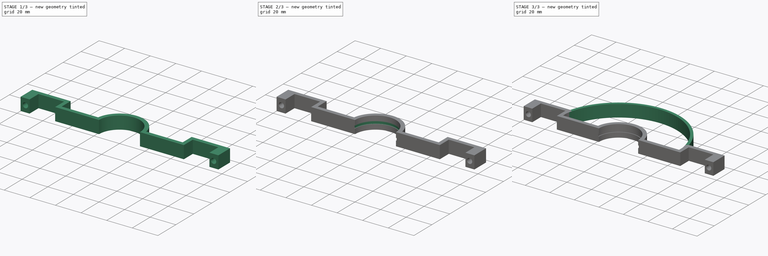
[diagram: build sequence overview — one tinted view per stage of 3, left to right]
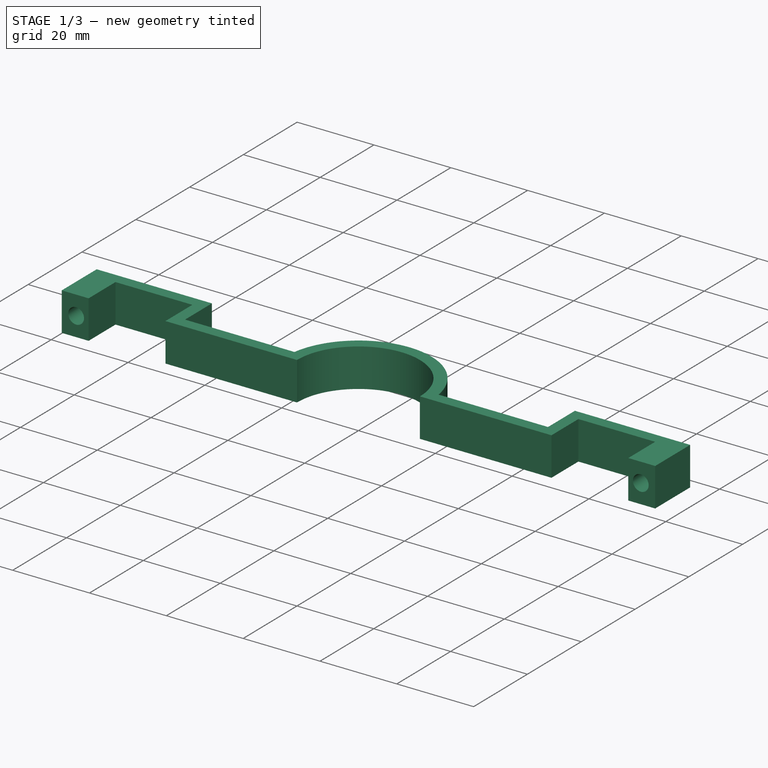
[diagram: stage 1 of 3 — iso view after this stage's code; geometry added in this stage tinted green]
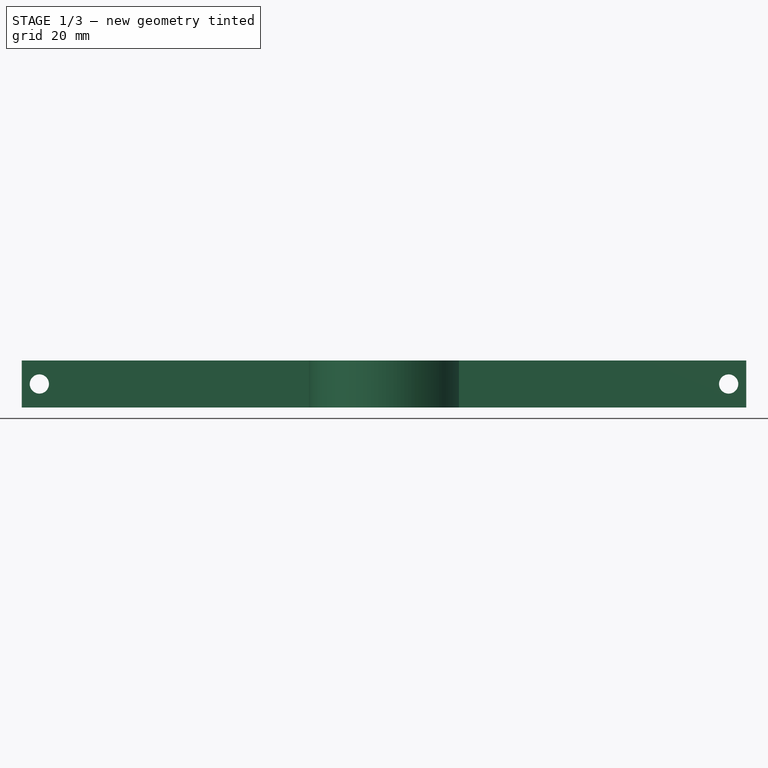
[diagram: stage 1 of 3 — front view after this stage's code; geometry added in this stage tinted green]
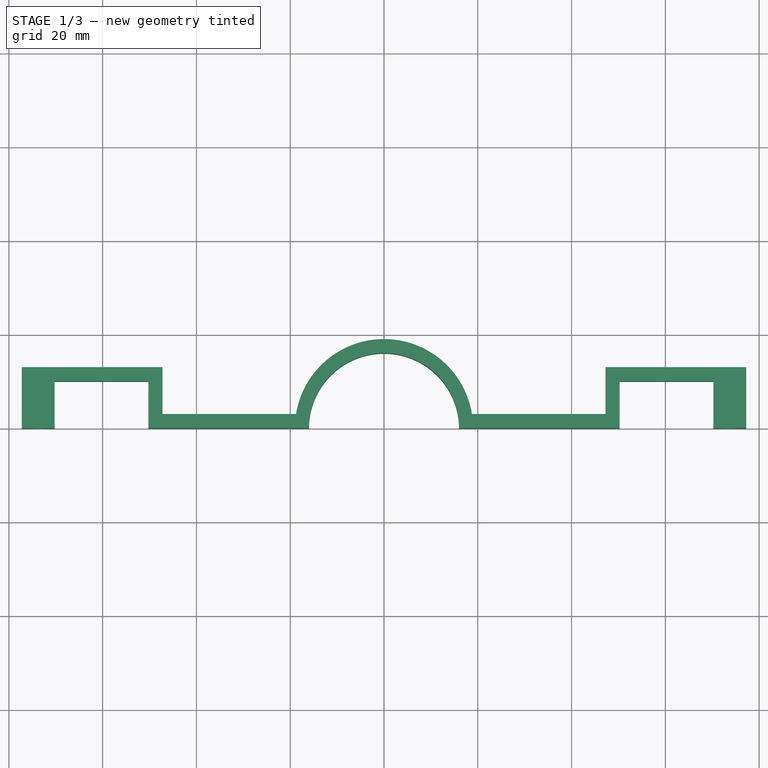
[diagram: stage 1 of 3 — top view after this stage's code; geometry added in this stage tinted green]
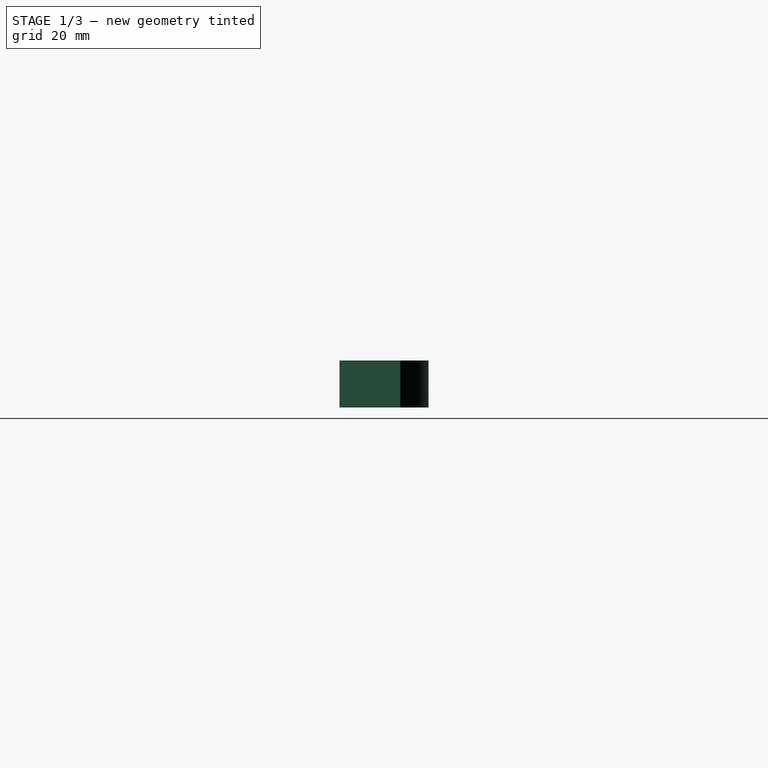
[diagram: stage 1 of 3 — right view after this stage's code; geometry added in this stage tinted green]
FCSTD DOCUMENT  (FreeCAD 0.20R29410 (Git))
Label: PadFlesHouder
License: All rights reserved
LicenseURL: http://en.wikipedia.org/wiki/All_rights_reserved
objects: Sketcher::SketchObject×5, PartDesign::Pad×2, PartDesign::Hole×2, PartDesign::Body×2, PartDesign::Pocket×1
note: 17 computed .brp shape members not serialized (recipe doc carries the construction recipe); baked Part::Feature solids carry a one-line shape summary decoded from their .brp

FEATURE [Sketcher::SketchObject] Sketch
  FullyConstrained = true
  sketch-geometry (20):
    g0: ArcOfCircle CenterX=0 CenterY=0 CenterZ=0 NormalX=0 NormalY=0 NormalZ=1 AngleXU=0 Radius=16 StartAngle=0 EndAngle=3.14159
    g1: LineSegment StartX=16 StartY=0 StartZ=0 EndX=50.25 EndY=0 EndZ=0
    g2: LineSegment StartX=50.25 StartY=0 StartZ=0 EndX=50.25 EndY=10 EndZ=0
    g3: LineSegment StartX=50.25 StartY=10 StartZ=0 EndX=70.25 EndY=10 EndZ=0
    g4: LineSegment StartX=70.25 StartY=10 StartZ=0 EndX=70.25 EndY=0 EndZ=0
    g5: LineSegment StartX=70.25 StartY=0 StartZ=0 EndX=77.25 EndY=0 EndZ=0
    g6: LineSegment StartX=77.25 StartY=0 StartZ=0 EndX=77.25 EndY=13 EndZ=0
    g7: LineSegment StartX=47.25 StartY=13 StartZ=0 EndX=47.25 EndY=3 EndZ=0
    g8: LineSegment StartX=47.25 StartY=3 StartZ=0 EndX=18.7617 EndY=3 EndZ=0
    g9: LineSegment StartX=77.25 StartY=13 StartZ=0 EndX=47.25 EndY=13 EndZ=0
    g10: ArcOfCircle CenterX=0 CenterY=0 CenterZ=0 NormalX=0 NormalY=0 NormalZ=1 AngleXU=0 Radius=19 StartAngle=0.158558 EndAngle=2.98303
    g11: LineSegment StartX=-16 StartY=2e-15 StartZ=0 EndX=-50.25 EndY=0 EndZ=0
    g12: LineSegment StartX=-50.25 StartY=0 StartZ=0 EndX=-50.25 EndY=10 EndZ=0
    g13: LineSegment StartX=-50.25 StartY=10 StartZ=0 EndX=-70.25 EndY=10 EndZ=0
    g14: LineSegment StartX=-70.25 StartY=10 StartZ=0 EndX=-70.25 EndY=0 EndZ=0
    g15: LineSegment StartX=-70.25 StartY=0 StartZ=0 EndX=-77.25 EndY=0 EndZ=0
    g16: LineSegment StartX=-77.25 StartY=0 StartZ=0 EndX=-77.25 EndY=13 EndZ=0
    g17: LineSegment StartX=-77.25 StartY=13 StartZ=0 EndX=-47.25 EndY=13 EndZ=0
    g18: LineSegment StartX=-47.25 StartY=13 StartZ=0 EndX=-47.25 EndY=3 EndZ=0
    g19: LineSegment StartX=-47.25 StartY=3 StartZ=0 EndX=-18.7617 EndY=3 EndZ=0
  constraints (60):
    c: Coincident(g0,g-1)
    c: PointOnObject(g0,g-1)
    c: PointOnObject(g0,g-1)
    c: Radius(g0) = 16
    c: Coincident(g1,g0)
    c: PointOnObject(g1,g-1)
    c: DistanceX(g1,g1) = 34.25
    c: Coincident(g1,g2)
    c: Vertical(g2)
    c: Coincident(g2,g3)
    c: Horizontal(g3)
    c: Coincident(g3,g4)
    c: PointOnObject(g4,g-1)
    c: Vertical(g4)
    c: Coincident(g4,g5)
    c: PointOnObject(g5,g-1)
    c: Coincident(g5,g6)
    c: Vertical(g6)
    c: Vertical(g7)
    c: Coincident(g7,g8)
    c: Horizontal(g8)
    c: DistanceY(g2,g2) = 10
    c: DistanceX(g3,g3) = 20
    c: DistanceX(g5,g5) = 7
    c: DistanceY(g6,g6) = 13
    c: Coincident(g9,g6)
    c: Coincident(g9,g7)
    c: Horizontal(g9)
    c: DistanceX(g9,g9) = 30
    c: DistanceY(g7,g7) = 10
    c: Coincident(g10,g0)
    c: Radius(g10) = 19
    c: Coincident(g10,g8)
    c: Coincident(g11,g0)
    c: PointOnObject(g11,g-1)
    c: DistanceX(g11,g11) = 34.25
    c: Coincident(g11,g12)
    c: Vertical(g12)
    c: Coincident(g12,g13)
    c: Horizontal(g13)
    c: Coincident(g13,g14)
    c: PointOnObject(g14,g-1)
    c: Vertical(g14)
    c: Coincident(g14,g15)
    c: PointOnObject(g15,g-1)
    c: Coincident(g15,g16)
    c: Vertical(g16)
    c: Coincident(g16,g17)
    c: Horizontal(g17)
    c: Coincident(g17,g18)
    c: Vertical(g18)
    c: Coincident(g18,g19)
    c: Horizontal(g19)
    c: DistanceY(g14,g14) = 10
    c: DistanceX(g13,g13) = 20
    c: DistanceX(g15,g15) = 7
    c: DistanceY(g16,g16) = 13
    c: DistanceX(g17,g17) = 30
    c: DistanceY(g18,g18) = 10
    c: Coincident(g19,g10)
FEATURE [PartDesign::Pad] Pad
  Direction = (0,0,1)
  Length = 10
  Length2 = 10
  Profile = -> Sketch
  ReferenceAxis = -> Sketch [N_Axis]
  Type = 0
FEATURE [Sketcher::SketchObject] Sketch004
  FullyConstrained = true
  MapMode = 5
  Placement = pos=(0,0,0) rot=(1,0,0;1.5708rad)
  Support = -> [XZ_Plane002]
  sketch-geometry (6):
    g0: Circle CenterX=-73.5 CenterY=5 CenterZ=0 NormalX=0 NormalY=0 NormalZ=1 AngleXU=0 Radius=1.75
    g1: Circle CenterX=73.5 CenterY=5 CenterZ=0 NormalX=0 NormalY=0 NormalZ=1 AngleXU=0 Radius=1.75
    g2: LineSegment StartX=-73.5 StartY=5 StartZ=0 EndX=0 EndY=5 EndZ=0
    g3: LineSegment StartX=-73.5 StartY=5 StartZ=0 EndX=-73.5 EndY=0 EndZ=0
    g4: LineSegment StartX=73.5 StartY=5 StartZ=0 EndX=0 EndY=5 EndZ=0
    g5: LineSegment StartX=73.5 StartY=5 StartZ=0 EndX=73.5 EndY=0 EndZ=0
  constraints (18):
    c: Equal(g0,g1)
    c: Diameter(g0) = 3.5
    c: Coincident(g2,g0)
    c: PointOnObject(g2,g-2)
    c: Horizontal(g2)
    c: Coincident(g3,g0)
    c: PointOnObject(g3,g-1)
    c: Vertical(g3)
    c: Coincident(g4,g1)
    c: PointOnObject(g4,g-2)
    c: Horizontal(g4)
    c: Equal(g4,g2)
    c: Coincident(g5,g1)
    c: PointOnObject(g5,g-1)
    c: Vertical(g5)
    c: Equal(g5,g3)
    c: DistanceX(g4,g4) = 73.5
    c: DistanceY(g5,g5) = 5
FEATURE [PartDesign::Hole] Hole
  BaseFeature = -> Pad
  CustomThreadClearance = 0
  Depth = 25
  DepthType = 0
  Diameter = 4.1
  DrillForDepth = false
  DrillPoint = 1
  DrillPointAngle = 118
  HoleCutCountersinkAngle = 90
  HoleCutCustomValues = false
  HoleCutDepth = 0
  HoleCutDiameter = 4.2
  HoleCutType = 0
  ModelThread = false
  Profile = -> Sketch004
  Tapered = false
  TaperedAngle = 90
  ThreadClass = 0
  ThreadDepth = 25
  ThreadDepthType = 0
  ThreadDirection = 0
  ThreadFit = 0
  ThreadSize = 0
  ThreadType = 0
  Threaded = false
  UseCustomThreadClearance = false
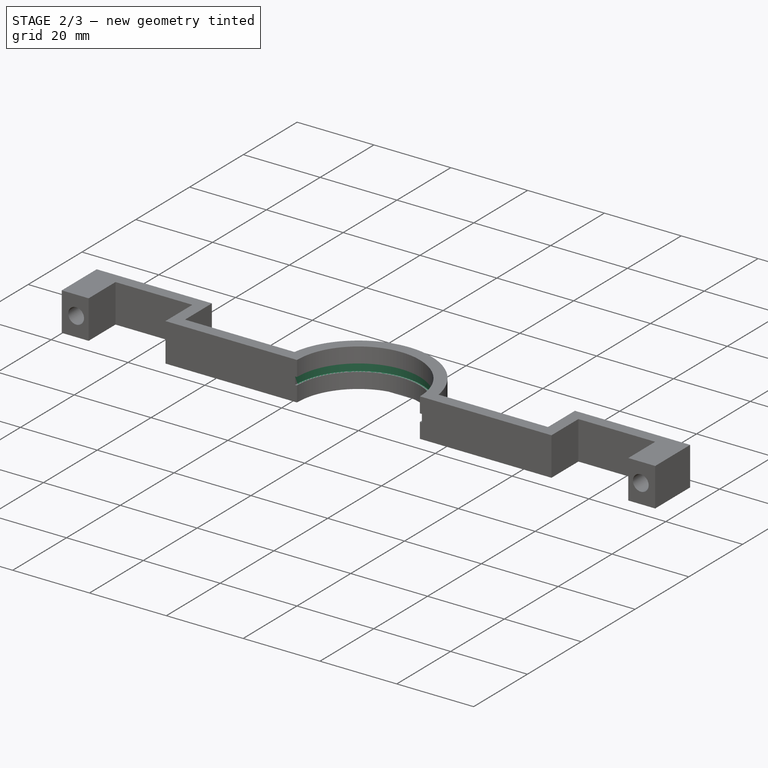
[diagram: stage 2 of 3 — iso view after this stage's code; geometry added in this stage tinted green]
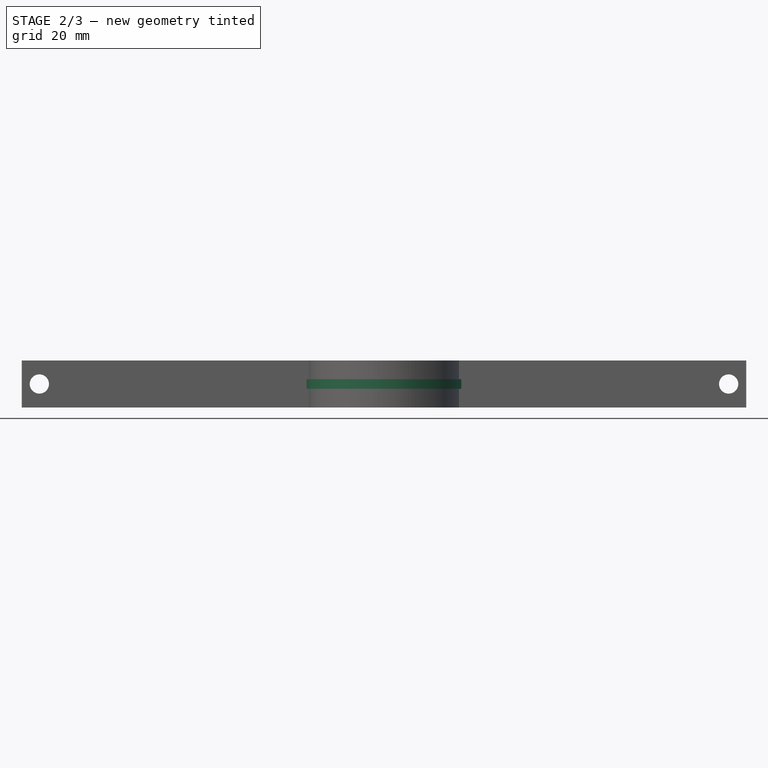
[diagram: stage 2 of 3 — front view after this stage's code; geometry added in this stage tinted green]
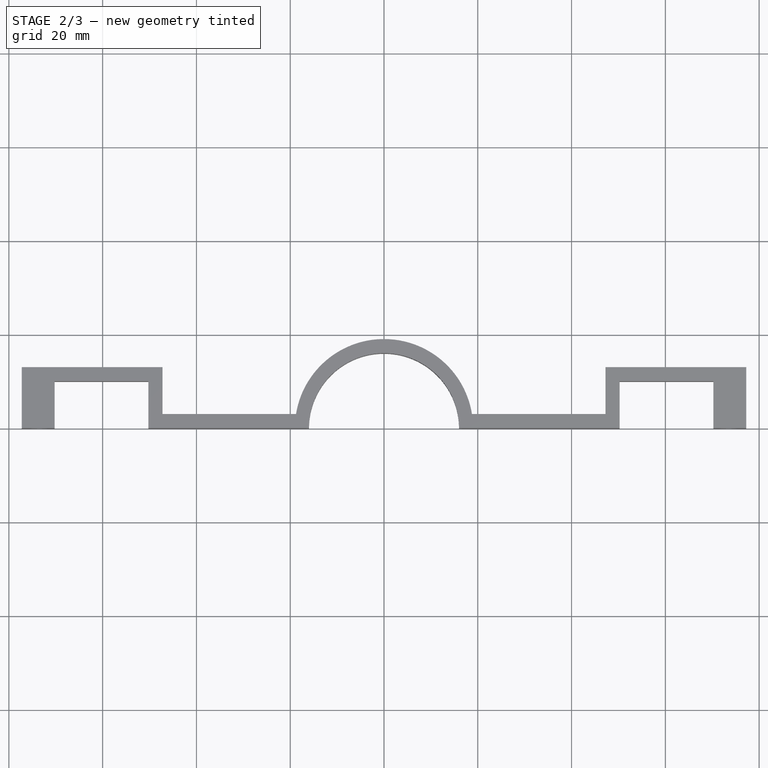
[diagram: stage 2 of 3 — top view after this stage's code; geometry added in this stage tinted green]
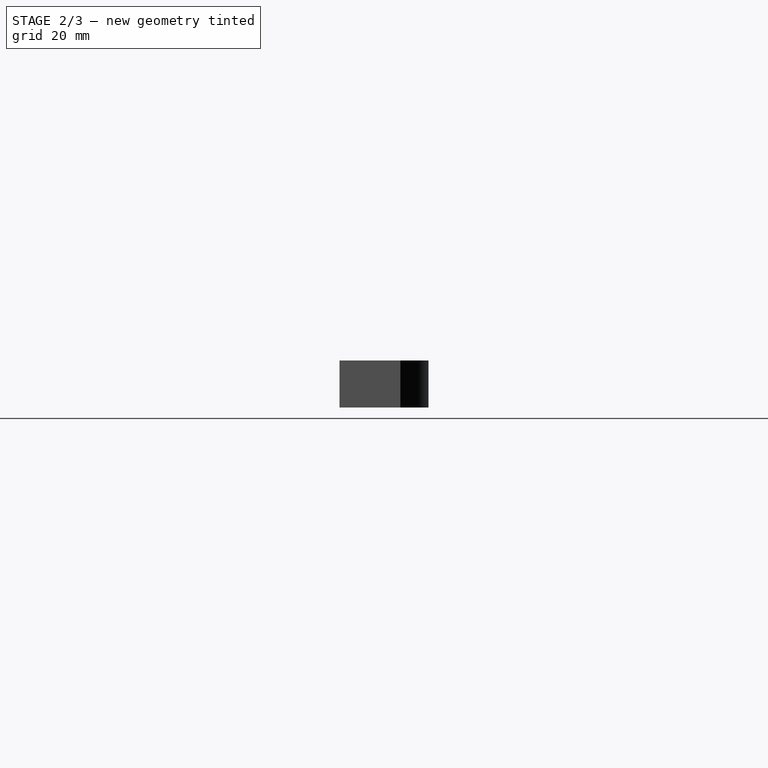
[diagram: stage 2 of 3 — right view after this stage's code; geometry added in this stage tinted green]
FEATURE [PartDesign::Body] Body002  label="PedFlesBodyHolder"
  Group = -> [Sketch003,Pad001,Sketch005,Hole001]
  Origin = -> Origin004
  Tip = -> Hole001
FEATURE [Sketcher::SketchObject] Sketch006
  AttachmentOffset = pos=(0,0,6) rot=(0,0,1;0rad)
  FullyConstrained = true
  MapMode = 5
  Placement = pos=(0,0,6) rot=(0,0,1;0rad)
  Support = -> [XY_Plane002]
  sketch-geometry (1):
    g0: Circle CenterX=0 CenterY=0 CenterZ=0 NormalX=0 NormalY=0 NormalZ=1 AngleXU=0 Radius=16.5
  constraints (2):
    c: Coincident(g0,g-1)
    c: Diameter(g0) = 33
FEATURE [PartDesign::Pocket] Pocket
  BaseFeature = -> Hole
  Direction = (0,0,-1)
  Length = 2
  Length2 = 5
  Profile = -> Sketch006
  ReferenceAxis = -> Sketch006 [N_Axis]
  Type = 0
FEATURE [PartDesign::Body] Body  label="PedFlesHalsHolder"
  Group = -> [Sketch,Pad,Sketch004,Hole,Sketch006,Pocket]
  Origin = -> Origin002
  Tip = -> Pocket
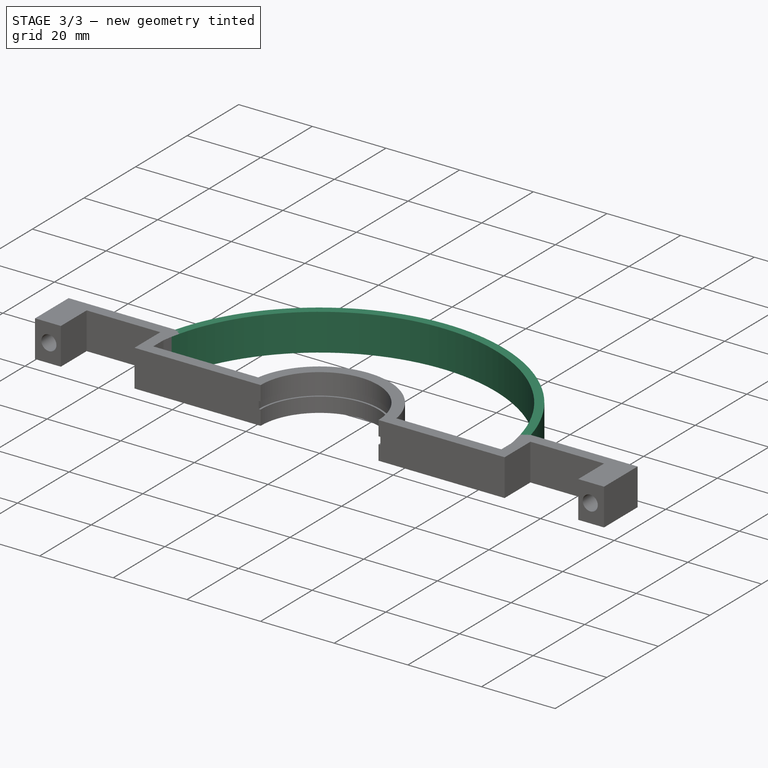
[diagram: stage 3 of 3 — iso view after this stage's code; geometry added in this stage tinted green]
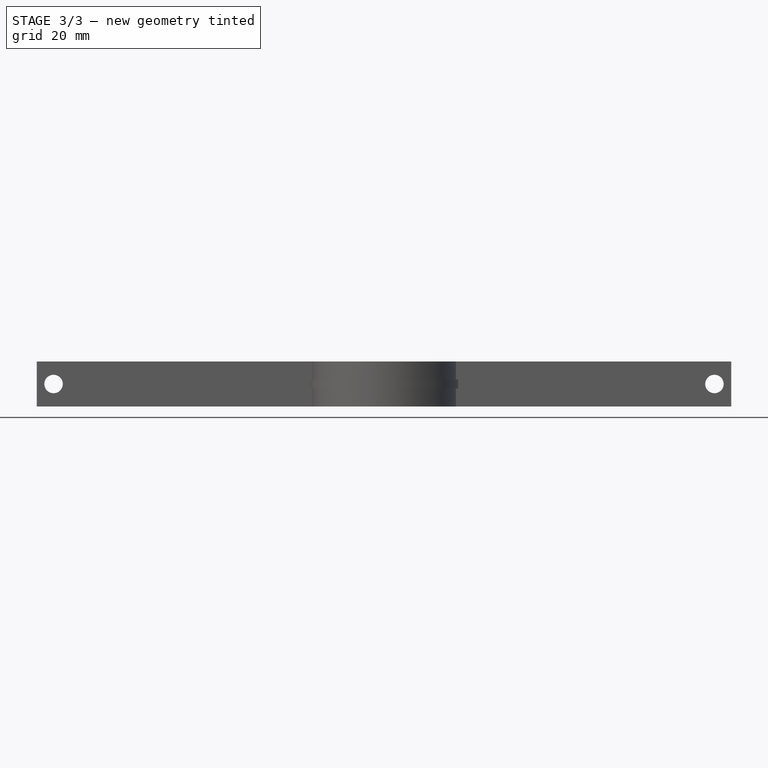
[diagram: stage 3 of 3 — front view after this stage's code; geometry added in this stage tinted green]
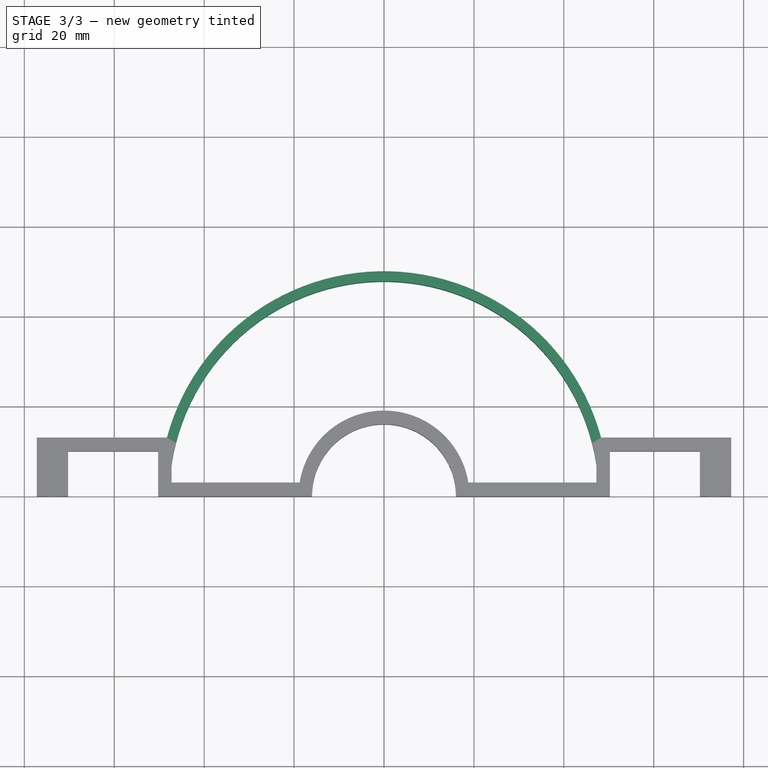
[diagram: stage 3 of 3 — top view after this stage's code; geometry added in this stage tinted green]
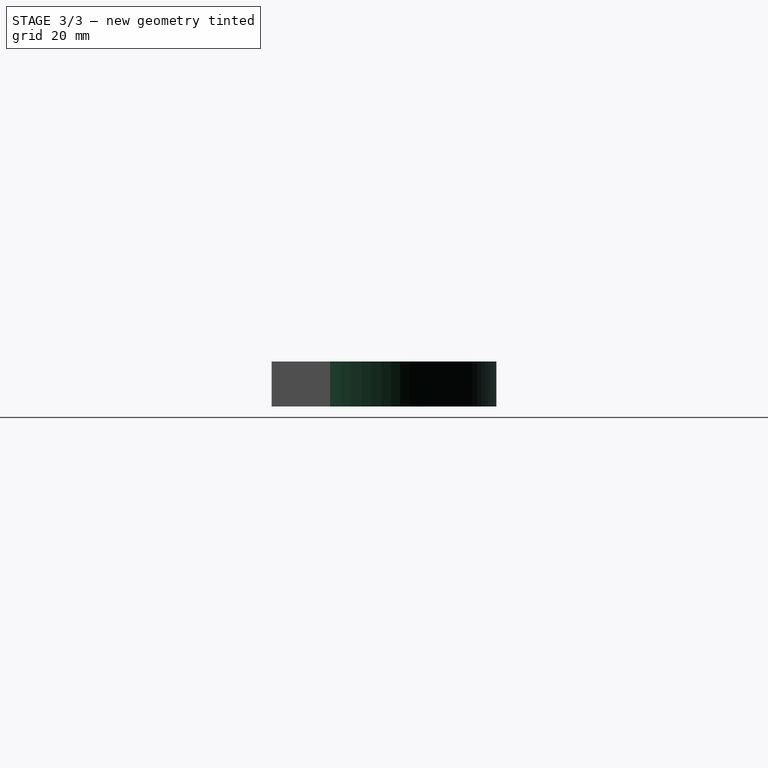
[diagram: stage 3 of 3 — right view after this stage's code; geometry added in this stage tinted green]
FEATURE [Sketcher::SketchObject] Sketch003
  FullyConstrained = true
  MapMode = 5
  Support = -> [XY_Plane004]
  sketch-geometry (16):
    g0: ArcOfCircle CenterX=0 CenterY=0 CenterZ=0 NormalX=0 NormalY=0 NormalZ=1 AngleXU=0 Radius=47.75 StartAngle=0 EndAngle=3.14159
    g1: LineSegment StartX=47.75 StartY=0 StartZ=0 EndX=50.25 EndY=0 EndZ=0
    g2: LineSegment StartX=50.25 StartY=0 StartZ=0 EndX=50.25 EndY=10 EndZ=0
    g3: LineSegment StartX=50.25 StartY=10 StartZ=0 EndX=70.25 EndY=10 EndZ=0
    g4: LineSegment StartX=70.25 StartY=10 StartZ=0 EndX=70.25 EndY=0 EndZ=0
    g5: LineSegment StartX=70.25 StartY=0 StartZ=0 EndX=77.25 EndY=0 EndZ=0
    g6: LineSegment StartX=77.25 StartY=0 StartZ=0 EndX=77.25 EndY=13 EndZ=0
    g7: LineSegment StartX=77.25 StartY=13 StartZ=0 EndX=48.2804 EndY=13 EndZ=0
    g8: ArcOfCircle CenterX=0 CenterY=0 CenterZ=0 NormalX=0 NormalY=0 NormalZ=1 AngleXU=0 Radius=50 StartAngle=0.263022 EndAngle=2.87857
    g9: LineSegment StartX=-47.75 StartY=0 StartZ=0 EndX=-50.25 EndY=0 EndZ=0
    g10: LineSegment StartX=-50.25 StartY=0 StartZ=0 EndX=-50.25 EndY=10 EndZ=0
    g11: LineSegment StartX=-50.25 StartY=10 StartZ=0 EndX=-70.25 EndY=10 EndZ=0
    g12: LineSegment StartX=-70.25 StartY=10 StartZ=0 EndX=-70.25 EndY=0 EndZ=0
    g13: LineSegment StartX=-70.25 StartY=0 StartZ=0 EndX=-77.25 EndY=0 EndZ=0
    g14: LineSegment StartX=-77.25 StartY=0 StartZ=0 EndX=-77.25 EndY=13 EndZ=0
    g15: LineSegment StartX=-77.25 StartY=13 StartZ=0 EndX=-48.2804 EndY=13 EndZ=0
  constraints (48):
    c: Coincident(g0,g-1)
    c: PointOnObject(g0,g-1)
    c: PointOnObject(g0,g-1)
    c: Radius(g0) = 47.75
    c: Coincident(g1,g0)
    c: PointOnObject(g1,g-1)
    c: DistanceX(g1,g1) = 2.5
    c: Coincident(g1,g2)
    c: Vertical(g2)
    c: Coincident(g2,g3)
    c: Horizontal(g3)
    c: Coincident(g3,g4)
    c: PointOnObject(g4,g-1)
    c: Vertical(g4)
    c: Coincident(g4,g5)
    c: PointOnObject(g5,g-1)
    c: Coincident(g5,g6)
    c: Vertical(g6)
    c: Coincident(g6,g7)
    c: Horizontal(g7)
    c: DistanceX(g5,g5) = 7
    c: DistanceX(g3,g3) = 20
    c: DistanceY(g6,g6) = 13
    c: Coincident(g8,g0)
    c: Radius(g8) = 50
    c: DistanceY(g2,g2) = 10
    c: Coincident(g7,g8)
    c: Coincident(g9,g0)
    c: PointOnObject(g9,g-1)
    c: DistanceX(g9,g9) = 2.5
    c: Coincident(g9,g10)
    c: Vertical(g10)
    c: Coincident(g10,g11)
    c: Horizontal(g11)
    c: Coincident(g11,g12)
    c: PointOnObject(g12,g-1)
    c: Vertical(g12)
    c: Coincident(g12,g13)
    c: PointOnObject(g13,g-1)
    c: Coincident(g13,g14)
    c: Vertical(g14)
    c: Coincident(g14,g15)
    c: Horizontal(g15)
    c: DistanceY(g14,g14) = 13
    c: DistanceY(g12,g12) = 10
    c: DistanceX(g11,g11) = 20
    c: DistanceX(g13,g13) = 7
    c: Coincident(g15,g8)
FEATURE [PartDesign::Pad] Pad001
  Direction = (0,0,1)
  Length = 10
  Length2 = 10
  Profile = -> Sketch003
  ReferenceAxis = -> Sketch003 [N_Axis]
  Type = 0
FEATURE [Sketcher::SketchObject] Sketch005
  FullyConstrained = true
  MapMode = 5
  Placement = pos=(0,0,0) rot=(1,0,0;1.5708rad)
  Support = -> [XZ_Plane004]
  sketch-geometry (6):
    g0: Circle CenterX=-73.5 CenterY=5 CenterZ=0 NormalX=0 NormalY=0 NormalZ=1 AngleXU=0 Radius=1.75
    g1: Circle CenterX=73.5 CenterY=5 CenterZ=0 NormalX=0 NormalY=0 NormalZ=1 AngleXU=0 Radius=1.75
    g2: LineSegment StartX=-73.5 StartY=5 StartZ=0 EndX=0 EndY=5 EndZ=0
    g3: LineSegment StartX=73.5 StartY=5 StartZ=0 EndX=0 EndY=5 EndZ=0
    g4: LineSegment StartX=73.5 StartY=5 StartZ=0 EndX=73.5 EndY=0 EndZ=0
    g5: LineSegment StartX=-73.5 StartY=5 StartZ=0 EndX=-73.5 EndY=0 EndZ=0
  constraints (18):
    c: Equal(g0,g1)
    c: Diameter(g0) = 3.5
    c: Coincident(g2,g0)
    c: PointOnObject(g2,g-2)
    c: Horizontal(g2)
    c: Coincident(g3,g1)
    c: PointOnObject(g3,g-2)
    c: Coincident(g4,g1)
    c: PointOnObject(g4,g-1)
    c: Vertical(g4)
    c: Horizontal(g3)
    c: Equal(g2,g3)
    c: DistanceX(g3,g3) = 73.5
    c: DistanceY(g4,g4) = 5
    c: Coincident(g5,g0)
    c: PointOnObject(g5,g-1)
    c: Vertical(g5)
    c: Equal(g4,g5)
FEATURE [PartDesign::Hole] Hole001
  BaseFeature = -> Pad001
  CustomThreadClearance = 0
  Depth = 25
  DepthType = 0
  Diameter = 4.1
  DrillForDepth = false
  DrillPoint = 1
  DrillPointAngle = 118
  HoleCutCountersinkAngle = 90
  HoleCutCustomValues = false
  HoleCutDepth = 0
  HoleCutDiameter = 6.1
  HoleCutType = 0
  ModelThread = false
  Profile = -> Sketch005
  Tapered = false
  TaperedAngle = 90
  ThreadClass = 0
  ThreadDepth = 25
  ThreadDepthType = 0
  ThreadDirection = 0
  ThreadFit = 0
  ThreadSize = 0
  ThreadType = 0
  Threaded = false
  UseCustomThreadClearance = false
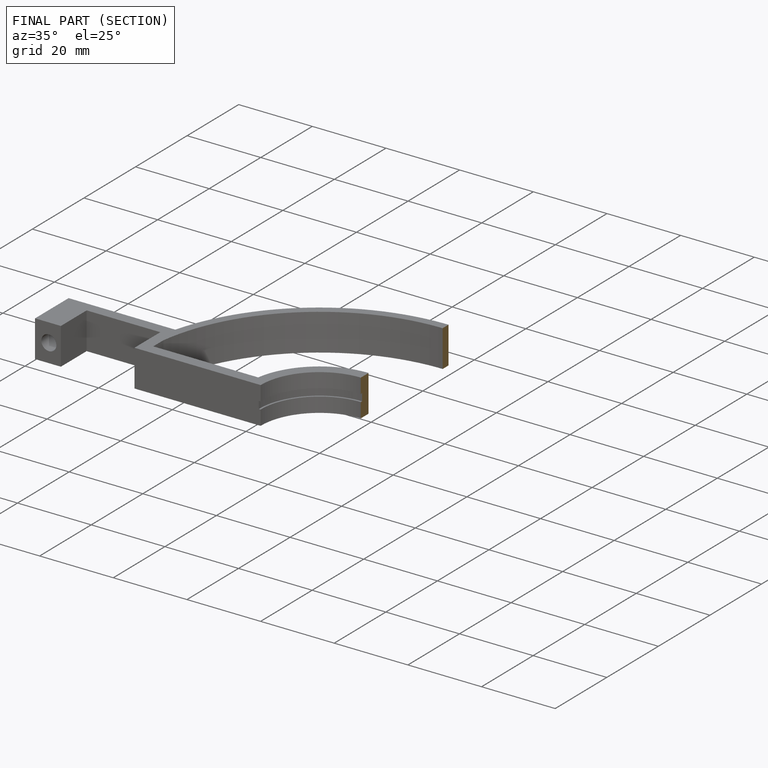
[diagram: finished part — half-section view (interior)]
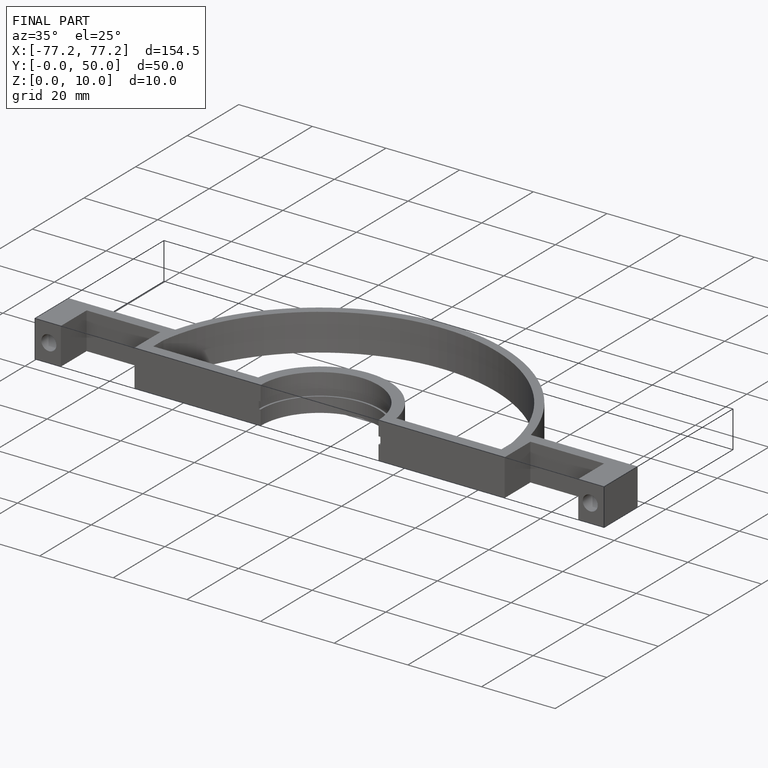
[diagram: finished part — iso view with bounding-box wireframe]
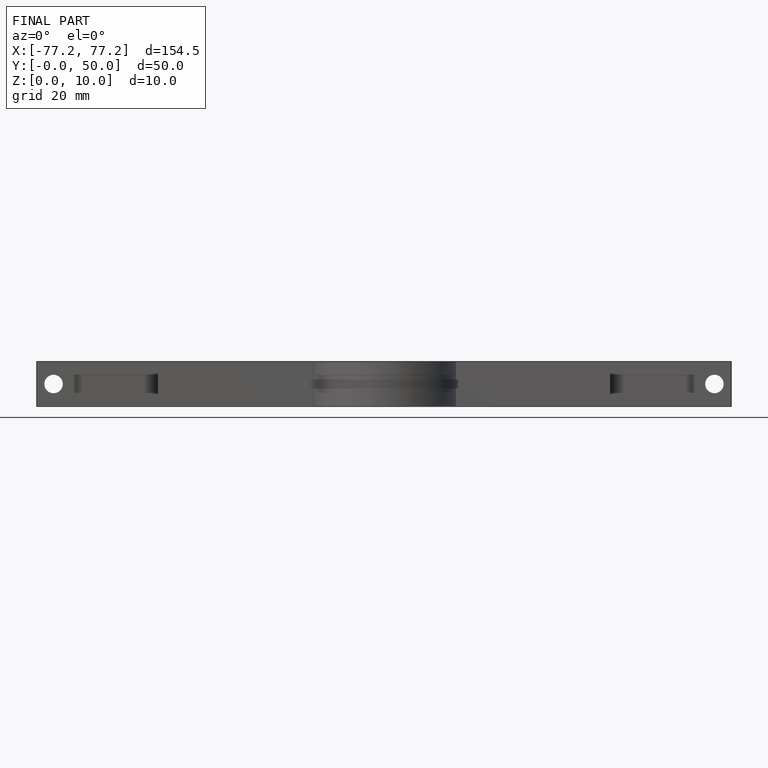
[diagram: finished part — front view with bounding-box wireframe]
